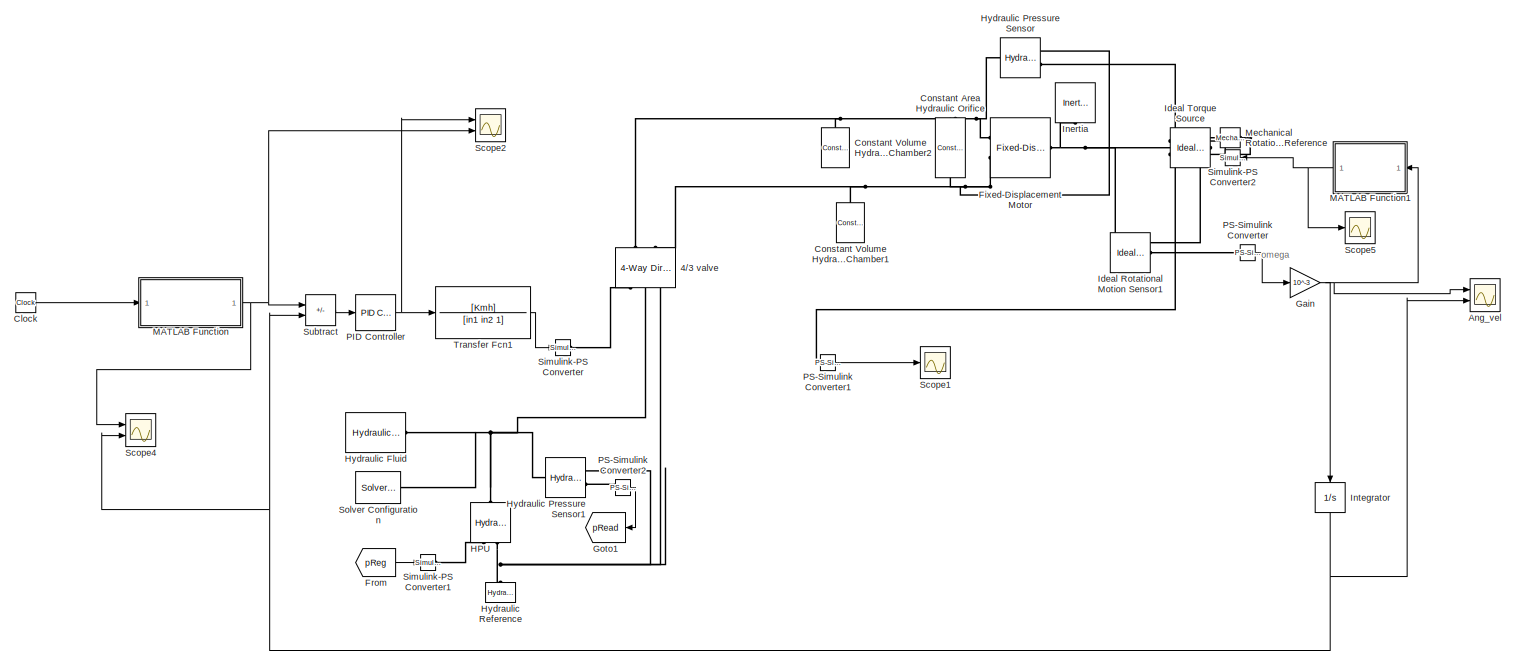
[diagram: root canvas - part 1/2, most of the canvas]
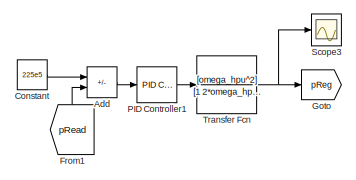
[diagram: root canvas - part 2/2, bottom left region]
MODEL slx_5ee28e4fd74a
KIND model
CONFIG AbsTol = auto
CONFIG EnableMultiTasking = off
CONFIG FixedStep = auto
CONFIG MaxStep = auto
CONFIG MinStep = auto
CONFIG RelTol = 1e-3
CONFIG SampleTimeConstraint = Unconstrained
CONFIG SolverName = VariableStepAuto
CONFIG StartTime = 0.0
CONFIG StopTime = 20
WORKSPACE source: MATLAB code (in-file)
WORKSPACE rd = 0.225
WORKSPACE m = 9000
WORKSPACE g = 9.81
WORKSPACE dd = 0.45
WORKSPACE nsh = 3
WORKSPACE i_g = 46
WORKSPACE mu_eq = 0.15
WORKSPACE w0 = 5
WORKSPACE rho = 875
WORKSPACE D = 28
WORKSPACE Ps = 270e5  (= 27000000)
WORKSPACE P_r = 70e5  (= 7000000)
WORKSPACE Cd = 0.7
WORKSPACE Q_r = 200/6e4  (= 0.00333333333333)
WORKSPACE AdMax = Q_r/Cd/sqrt(2/rho*P_r/2)
WORKSPACE omega_mh = 50*2*pi  (= 314.159265359)
WORKSPACE omega_v = omega_mh/3  (= 104.71975512)
WORKSPACE Kqu = Cd*AdMax*sqrt(Ps/rho)
WORKSPACE Kmh = Kqu / ((1/2*pi)*(D/10^6))
WORKSPACE damp = 1
WORKSPACE in1 = 1/(omega_v^2)  (= 9.11890652781e-05)
WORKSPACE in2 = (2*damp)/omega_v  (= 0.019098593171)
WORKSPACE omega_hpu = 6
WORKSPACE zeta_hpu = 1
BLOCK [Reference] 4//3 valve  REF=sh_lib/Valves/Directional Valves/4-Way Directional
Valve
  NameLocation = right
  Ports = [0, 0, 0, 0, 0, 2, 3]
  SourceBlock = sh_lib/Valves/Directional Valves/4-Way Directional\nValve
  SourceProductBaseCode = SH
  SourceType = 4-Way Directional\nValve
BLOCK [Sum] Add
  IconShape = rectangular
  Inputs = +-
  Ports = [2, 1]
BLOCK [Scope] Ang_vel
  Floating = off
  NumInputPorts = 2
  Ports = [2]
  ScopeSpecificationString = Simulink.scopes.TimeScopeBlockCfg('CurrentConfiguration', extmgr.ConfigurationSet(extmgr.Configuration('Core','General UI',true),extmgr.Configuration('Core','Source UI',true),extmgr.Configuration('Sources','WiredSimulink',true),extmgr.Configuration('Visuals','Time Domain',true,'SerializedDisplays',{struct('MinYLimReal','-1.01762','MaxYLimReal','1.00199','YLabelReal','','MinYLimMag','0.00000','MaxY...<+1717ch>
BLOCK [Clock] Clock
BLOCK [Constant] Constant
  Value = 225e5
BLOCK [Reference] Constant Area Hydraulic Orifice  REF=fl_lib/Hydraulic/Hydraulic Elements/Constant Area
Hydraulic Orifice
  NameLocation = left
  Ports = [0, 0, 0, 0, 0, 1, 1]
  SourceBlock = fl_lib/Hydraulic/Hydraulic Elements/Constant Area\nHydraulic Orifice
  SourceProductBaseCode = PW,SS,VE
  SourceType = Constant Area\nHydraulic Orifice
BLOCK [Reference] Constant Volume Hydraulic Chamber1  REF=fl_lib/Hydraulic/Hydraulic Elements/Constant Volume
Hydraulic Chamber
  NameLocation = right
  Ports = [0, 0, 0, 0, 0, 1]
  SourceBlock = fl_lib/Hydraulic/Hydraulic Elements/Constant Volume\nHydraulic Chamber
  SourceProductBaseCode = PW,SS,VE
  SourceType = Constant Volume\nHydraulic Chamber
BLOCK [Reference] Constant Volume Hydraulic Chamber2  REF=fl_lib/Hydraulic/Hydraulic Elements/Constant Volume
Hydraulic Chamber
  NameLocation = right
  Ports = [0, 0, 0, 0, 0, 1]
  SourceBlock = fl_lib/Hydraulic/Hydraulic Elements/Constant Volume\nHydraulic Chamber
  SourceProductBaseCode = PW,SS,VE
  SourceType = Constant Volume\nHydraulic Chamber
BLOCK [Reference] Fixed-Displacement Motor  REF=sh_lib/Pumps and Motors/Fixed-Displacement
Motor
  Ports = [0, 0, 0, 0, 0, 2, 1]
  SourceBlock = sh_lib/Pumps and Motors/Fixed-Displacement\nMotor
  SourceProductBaseCode = SH
  SourceType = Fixed-Displacement\nMotor
BLOCK [From] From
  GotoTag = pReg
BLOCK [From] From1
  GotoTag = pRead
  NameLocation = right
BLOCK [Gain] Gain
  Gain = 10^-3
BLOCK [Goto] Goto
  GotoTag = pReg
BLOCK [Goto] Goto1
  GotoTag = pRead
  NameLocation = top
BLOCK [Reference] HPU  REF=fl_lib/Hydraulic/Hydraulic Sources/Hydraulic Pressure
Source
  NameLocation = right
  Ports = [0, 0, 0, 0, 0, 1, 2]
  SourceBlock = fl_lib/Hydraulic/Hydraulic Sources/Hydraulic Pressure\nSource
  SourceProductBaseCode = PW,SS,VE
  SourceType = Hydraulic Pressure\nSource
BLOCK [Reference] Hydraulic Fluid  REF=sh_lib/Hydraulic Utilities/Hydraulic Fluid
  Ports = [0, 0, 0, 0, 0, 0, 1]
  SourceBlock = sh_lib/Hydraulic Utilities/Hydraulic Fluid
  SourceProductBaseCode = SH
  SourceType = Hydraulic Fluid
BLOCK [Reference] Hydraulic Pressure Sensor  REF=fl_lib/Hydraulic/Hydraulic Sensors/Hydraulic Pressure
Sensor
  Ports = [0, 0, 0, 0, 0, 1, 2]
  SourceBlock = fl_lib/Hydraulic/Hydraulic Sensors/Hydraulic Pressure\nSensor
  SourceProductBaseCode = PW,SS,VE
  SourceType = Hydraulic Pressure\nSensor
BLOCK [Reference] Hydraulic Pressure Sensor1  REF=fl_lib/Hydraulic/Hydraulic Sensors/Hydraulic Pressure
Sensor
  Ports = [0, 0, 0, 0, 0, 1, 2]
  SourceBlock = fl_lib/Hydraulic/Hydraulic Sensors/Hydraulic Pressure\nSensor
  SourceProductBaseCode = PW,SS,VE
  SourceType = Hydraulic Pressure\nSensor
BLOCK [Reference] Hydraulic Reference  REF=fl_lib/Hydraulic/Hydraulic Elements/Hydraulic Reference
  NameLocation = right
  Ports = [0, 0, 0, 0, 0, 1]
  SourceBlock = fl_lib/Hydraulic/Hydraulic Elements/Hydraulic Reference
  SourceProductBaseCode = PW,SS,VE
  SourceType = Hydraulic Reference
BLOCK [Reference] Ideal Rotational Motion Sensor1  REF=fl_lib/Mechanical/Mechanical Sensors/Ideal Rotational
Motion Sensor
  Ports = [0, 0, 0, 0, 0, 1, 3]
  SourceBlock = fl_lib/Mechanical/Mechanical Sensors/Ideal Rotational\nMotion Sensor
  SourceProductBaseCode = PW,SS,VE
  SourceType = Ideal Rotational\nMotion Sensor
BLOCK [Reference] Ideal Torque Source  REF=fl_lib/Mechanical/Mechanical Sources/Ideal Torque Source
  NameLocation = top
  Ports = [0, 0, 0, 0, 0, 1, 2]
  SourceBlock = fl_lib/Mechanical/Mechanical Sources/Ideal Torque Source
  SourceProductBaseCode = PW,SS,VE
  SourceType = Ideal Torque Source
BLOCK [Reference] Inertia  REF=fl_lib/Mechanical/Rotational Elements/Inertia
  NameLocation = left
  Ports = [0, 0, 0, 0, 0, 1]
  SourceBlock = fl_lib/Mechanical/Rotational Elements/Inertia
  SourceProductBaseCode = PW,SS,VE
  SourceType = Inertia
  Tag = Factory Generic
BLOCK [Integrator] Integrator
  NameLocation = left
  Ports = [1, 1]
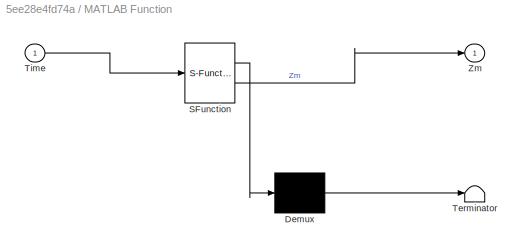
BLOCK [SubSystem] MATLAB Function
  ErrorFcn = Stateflow.Translate.translate
  PermitHierarchicalResolution = ExplicitOnly
  Ports = [1, 1]
  RequestExecContextInheritance = off
  SFBlockType = MATLAB Function
  TreatAsAtomicUnit = on
BLOCK [Demux] MATLAB Function/ Demux 
  Outputs = 1
  Ports = [1, 1]
BLOCK [S-Function] MATLAB Function/ SFunction 
  EnableBusSupport = on
  FunctionName = sf_sfun
  PortCounts = [1 2]
  Ports = [1, 2]
  SFcnIsStateOwnerBlock = off
  SFunctionDeploymentMode = off
  Tag = Stateflow S-Function 2
BLOCK [Terminator] MATLAB Function/ Terminator 
BLOCK [Inport] MATLAB Function/Time
BLOCK [Outport] MATLAB Function/Zm
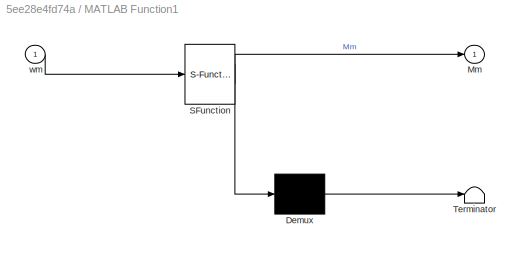
BLOCK [SubSystem] MATLAB Function1
  ErrorFcn = Stateflow.Translate.translate
  NameLocation = top
  PermitHierarchicalResolution = ExplicitOnly
  Ports = [1, 1]
  RequestExecContextInheritance = off
  SFBlockType = MATLAB Function
  TreatAsAtomicUnit = on
BLOCK [Demux] MATLAB Function1/ Demux 
  Outputs = 1
  Ports = [1, 1]
BLOCK [S-Function] MATLAB Function1/ SFunction 
  EnableBusSupport = on
  FunctionName = sf_sfun
  PortCounts = [1 2]
  Ports = [1, 2]
  SFcnIsStateOwnerBlock = off
  SFunctionDeploymentMode = off
  Tag = Stateflow S-Function 1
BLOCK [Terminator] MATLAB Function1/ Terminator 
BLOCK [Outport] MATLAB Function1/Mm
BLOCK [Inport] MATLAB Function1/wm
BLOCK [Reference] Mechanical Rotational Reference  REF=fl_lib/Mechanical/Rotational Elements/Mechanical
Rotational Reference
  NameLocation = top
  Ports = [0, 0, 0, 0, 0, 1]
  SourceBlock = fl_lib/Mechanical/Rotational Elements/Mechanical\nRotational Reference
  SourceProductBaseCode = PW,SS,VE
  SourceType = Mechanical\nRotational Reference
BLOCK [Reference] PID Controller  REF=slpidlib/PID Controller
  Ports = [1, 1]
  SourceBlock = slpidlib/PID Controller
  SourceProductBaseCode = SL
  SourceType = PID 1dof
BLOCK [Reference] PID Controller1  REF=slpidlib/PID Controller
  Ports = [1, 1]
  SourceBlock = slpidlib/PID Controller
  SourceProductBaseCode = SL
  SourceType = PID 1dof
BLOCK [Reference] PS-Simulink Converter  REF=nesl_utility/PS-Simulink
Converter
  Ports = [0, 1, 0, 0, 0, 1]
  SourceBlock = nesl_utility/PS-Simulink\nConverter
  SourceProductBaseCode = SS,PW,VE
  SourceType = PS-Simulink\nConverter
BLOCK [Reference] PS-Simulink Converter1  REF=nesl_utility/PS-Simulink
Converter
  Ports = [0, 1, 0, 0, 0, 1]
  SourceBlock = nesl_utility/PS-Simulink\nConverter
  SourceProductBaseCode = SS,PW,VE
  SourceType = PS-Simulink\nConverter
BLOCK [Reference] PS-Simulink Converter2  REF=nesl_utility/PS-Simulink
Converter
  Ports = [0, 1, 0, 0, 0, 1]
  SourceBlock = nesl_utility/PS-Simulink\nConverter
  SourceProductBaseCode = SS,PW,VE
  SourceType = PS-Simulink\nConverter
BLOCK [Scope] Scope1
  Floating = off
  NumInputPorts = 1
  Ports = [1]
  ScopeSpecificationString = Simulink.scopes.TimeScopeBlockCfg('CurrentConfiguration', extmgr.ConfigurationSet(extmgr.Configuration('Core','General UI',true),extmgr.Configuration('Core','Source UI',true),extmgr.Configuration('Sources','WiredSimulink',true,'DataLoggingVariableName','ScopeData1'),extmgr.Configuration('Visuals','Time Domain',true,'SerializedDisplays',{struct('MinYLimReal','-41924926.69942','MaxYLimReal','3490070...<+1561ch>
BLOCK [Scope] Scope2
  Floating = off
  NumInputPorts = 2
  Ports = [2]
  ScopeSpecificationString = Simulink.scopes.TimeScopeBlockCfg('CurrentConfiguration', extmgr.ConfigurationSet(extmgr.Configuration('Core','General UI',true),extmgr.Configuration('Core','Source UI',true),extmgr.Configuration('Sources','WiredSimulink',true,'DataLoggingVariableName','ScopeData2'),extmgr.Configuration('Visuals','Time Domain',true,'SerializedDisplays',{struct('MinYLimReal','-0.08354','MaxYLimReal','0.08354','YLab...<+1504ch>
BLOCK [Scope] Scope3
  Floating = off
  NumInputPorts = 1
  Ports = [1]
  ScopeSpecificationString = Simulink.scopes.TimeScopeBlockCfg('CurrentConfiguration', extmgr.ConfigurationSet(extmgr.Configuration('Core','General UI',true),extmgr.Configuration('Core','Source UI',true),extmgr.Configuration('Sources','WiredSimulink',true,'DataLoggingVariableName','ScopeData1'),extmgr.Configuration('Visuals','Time Domain',true,'SerializedDisplays',{struct('MinYLimReal','-2511160.71429','MaxYLimReal','22600446...<+1446ch>
BLOCK [Scope] Scope4
  Floating = off
  NumInputPorts = 2
  Ports = [2]
  ScopeSpecificationString = Simulink.scopes.TimeScopeBlockCfg('CurrentConfiguration', extmgr.ConfigurationSet(extmgr.Configuration('Core','General UI',true),extmgr.Configuration('Core','Source UI',true),extmgr.Configuration('Sources','WiredSimulink',true,'DataLoggingVariableName','ScopeData4'),extmgr.Configuration('Visuals','Time Domain',true,'SerializedDisplays',{struct('MinYLimReal','-1.00578','MaxYLimReal','1.002','YLabel...<+1496ch>
BLOCK [Scope] Scope5
  Floating = off
  NumInputPorts = 1
  Ports = [1]
  ScopeSpecificationString = Simulink.scopes.TimeScopeBlockCfg('CurrentConfiguration', extmgr.ConfigurationSet(extmgr.Configuration('Core','General UI',true),extmgr.Configuration('Core','Source UI',true),extmgr.Configuration('Sources','WiredSimulink',true,'DataLoggingVariableName','ScopeData5'),extmgr.Configuration('Visuals','Time Domain',true,'SerializedDisplays',{struct('MinYLimReal','70.60723','MaxYLimReal','73.37788','YLa...<+1488ch>
BLOCK [Reference] Simulink-PS Converter  REF=nesl_utility/Simulink-PS
Converter
  Ports = [1, 0, 0, 0, 0, 0, 1]
  SourceBlock = nesl_utility/Simulink-PS\nConverter
  SourceProductBaseCode = SS,PW,VE
  SourceType = Simulink-PS\nConverter
BLOCK [Reference] Simulink-PS Converter1  REF=nesl_utility/Simulink-PS
Converter
  Ports = [1, 0, 0, 0, 0, 0, 1]
  SourceBlock = nesl_utility/Simulink-PS\nConverter
  SourceProductBaseCode = SS,PW,VE
  SourceType = Simulink-PS\nConverter
BLOCK [Reference] Simulink-PS Converter2  REF=nesl_utility/Simulink-PS
Converter
  NameLocation = top
  Ports = [1, 0, 0, 0, 0, 0, 1]
  SourceBlock = nesl_utility/Simulink-PS\nConverter
  SourceProductBaseCode = SS,PW,VE
  SourceType = Simulink-PS\nConverter
BLOCK [Reference] Solver Configuration  REF=nesl_utility/Solver
Configuration
  Ports = [0, 0, 0, 0, 0, 0, 1]
  SourceBlock = nesl_utility/Solver\nConfiguration
  SourceProductBaseCode = SS,PW,VE
  SourceType = Solver\nConfiguration
BLOCK [Sum] Subtract
  IconShape = rectangular
  Inputs = +-
  Ports = [2, 1]
BLOCK [TransferFcn] Transfer Fcn
  Denominator = [1 2*omega_hpu*zeta_hpu *omega_hpu^2]
  Numerator = [omega_hpu^2]
BLOCK [TransferFcn] Transfer Fcn1
  Denominator = [in1 in2 1]
  Numerator = [Kmh]
ANNOTATION (root): omega
LINE Add:1 -> PID Controller1:1
LINE Clock:1 -> MATLAB Function:1
LINE Constant:1 -> Add:1
LINE From1:1 -> Add:2
LINE From:1 -> Simulink-PS Converter1:1
NET Gain:1 -> Ang_vel:1, Integrator:1, MATLAB Function1:1
NET Integrator:1 -> Ang_vel:2, Scope4:2, Subtract:2
NET MATLAB Function1:1 -> Scope5:1, Simulink-PS Converter2:1
NET MATLAB Function:1 -> Scope2:2, Scope4:1, Subtract:1
LINE PID Controller1:1 -> Transfer Fcn:1
NET PID Controller:1 -> Scope2:1, Transfer Fcn1:1
LINE PS-Simulink Converter1:1 -> Scope1:1
LINE PS-Simulink Converter2:1 -> Goto1:1
LINE PS-Simulink Converter:1 -> Gain:1
LINE Subtract:1 -> PID Controller:1
LINE Transfer Fcn1:1 -> Simulink-PS Converter:1
NET Transfer Fcn:1 -> Goto:1, Scope3:1
PNET net1: 4//3 valve:LConn1 -- Constant Area Hydraulic Orifice:LConn1 -- Constant Volume Hydraulic Chamber2:LConn1 -- Fixed-Displacement Motor:LConn1 -- Hydraulic Pressure Sensor:LConn1
PNET net2: 4//3 valve:LConn2 -- Constant Area Hydraulic Orifice:RConn1 -- Constant Volume Hydraulic Chamber1:LConn1 -- Fixed-Displacement Motor:LConn2 -- Hydraulic Pressure Sensor:RConn1
PLINE 4//3 valve:RConn1 -- Simulink-PS Converter:RConn1
PNET net3: 4//3 valve:RConn2 -- HPU:LConn1 -- Hydraulic Fluid:RConn1 -- Hydraulic Pressure Sensor1:LConn1 -- Solver Configuration:RConn1
PNET net4: 4//3 valve:RConn3 -- HPU:RConn2 -- Hydraulic Pressure Sensor1:RConn1 -- Hydraulic Reference:LConn1
PNET net5: Fixed-Displacement Motor:RConn1 -- Ideal Rotational Motion Sensor1:LConn1 -- Ideal Torque Source:LConn1 -- Inertia:LConn1
PLINE HPU:RConn1 -- Simulink-PS Converter1:RConn1
PLINE Hydraulic Pressure Sensor1:RConn2 -- PS-Simulink Converter2:LConn1
PLINE Hydraulic Pressure Sensor:RConn2 -- PS-Simulink Converter1:LConn1
PNET net6: Ideal Rotational Motion Sensor1:RConn1 -- Ideal Torque Source:RConn2 -- Mechanical Rotational Reference:LConn1
PLINE Ideal Rotational Motion Sensor1:RConn2 -- PS-Simulink Converter:LConn1
PLINE Ideal Torque Source:RConn1 -- Simulink-PS Converter2:RConn1
note: NET lines group one-source signal fan-out (src -> all destinations, sorted); 1:1 wires keep LINE; PNET lines group multi-terminal physical nets as a canonical sorted terminal list (undirected conserving connections); 2-terminal nets keep the pairwise PLINE form
CHART MATLAB Function states=1 transitions=1
  STATE_LABEL 'eML_blk_kernel()'
  STATE_LABEL 'SCRIPT:\nfunction Zm = fcn(Time)\nZm = -0.8*sin((pi)/5 * Time);\n\ny = Zm\n\n\n'
CHART MATLAB Function1 states=1 transitions=1
  STATE_LABEL 'eML_blk_kernel()'
  STATE_LABEL 'SCRIPT:\nfunction Mm = fcn(wm)\nrd = 0.225;\nm = 9000;\ng = 9.81;\ndd = 0.45;\nnsh = 3;\ni_g = 46;\nmu_eq = 0.15;\nw0 = 5; \n\nMm = ((m*g*dd)/(2*nsh*2*i_g)) * (1 + mu_eq*tanh(wm/w0)); \n'
CHART  states=0 transitions=0
CHART  states=0 transitions=0
